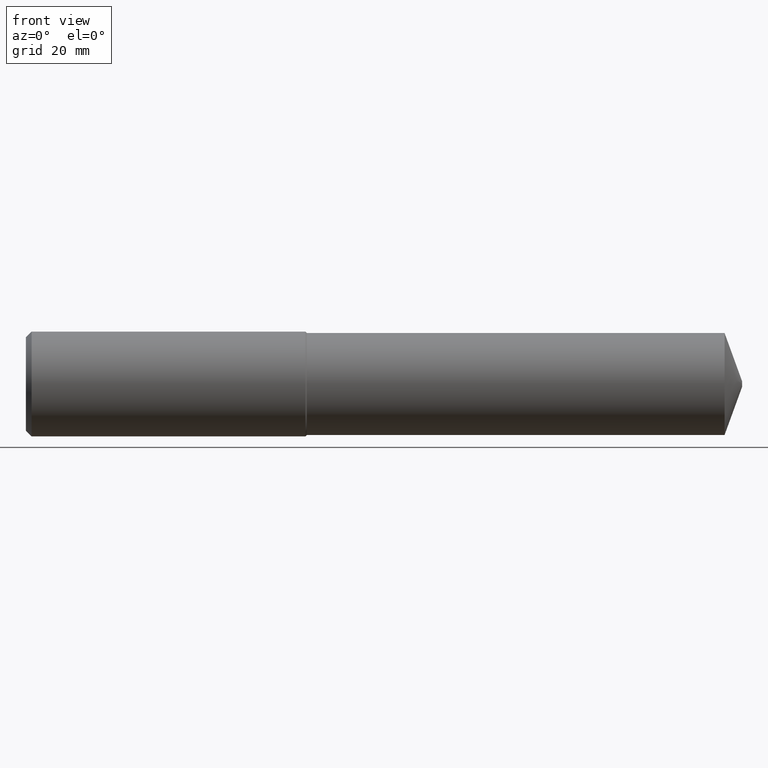
[diagram: clean part render]
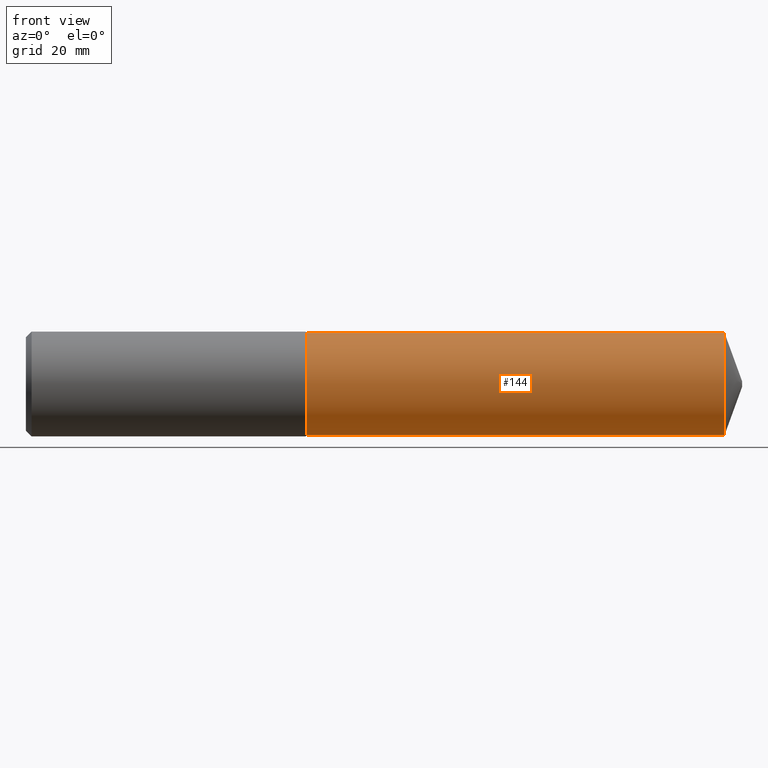
[diagram: same view with one face highlighted and labeled with its STEP entity id]
A machine part, front view. The second image highlights one B-rep face of the part: STEP entity #144.
In plain terms, the highlighted cylindrical surface (partial cylindrical patch) has radius 8.7503 mm, axis along (1, -0, -0).
Its self-contained STEP definition (entity closure, byte-faithful):
#12 = LINE ( 'NONE', #121, #78 ) ;
#14 = DIRECTION ( 'NONE',  ( 1.000000000000000000, -0.000000000000000000, -0.000000000000000000 ) ) ;
#17 = EDGE_LOOP ( 'NONE', ( #248, #75, #277, #185 ) ) ;
#25 = CARTESIAN_POINT ( 'NONE',  ( -0.03808593750000075634, 4.218908223062636632E-17, 0.3445000000000003615 ) ) ;
#27 = CARTESIAN_POINT ( 'NONE',  ( 4.723501418434322474, 4.218908223062640330E-17, -0.3445000000000006390 ) ) ;
#56 = DIRECTION ( 'NONE',  ( 0.000000000000000000, 0.000000000000000000, -1.000000000000000000 ) ) ;
#58 = DIRECTION ( 'NONE',  ( 0.000000000000000000, 0.000000000000000000, -1.000000000000000000 ) ) ;
#74 = EDGE_CURVE ( 'NONE', #367, #116, #12, .T. ) ;
#75 = ORIENTED_EDGE ( 'NONE', *, *, #289, .T. ) ;
#78 = VECTOR ( 'NONE', #14, 39.37007874015748143 ) ;
#81 = EDGE_CURVE ( 'NONE', #218, #266, #124, .T. ) ;
#90 = DIRECTION ( 'NONE',  ( 1.000000000000000000, -0.000000000000000000, -0.000000000000000000 ) ) ;
#112 = FACE_OUTER_BOUND ( 'NONE', #17, .T. ) ;
#116 = VERTEX_POINT ( 'NONE', #27 ) ;
#117 = CARTESIAN_POINT ( 'NONE',  ( 4.723501418434322474, 0.000000000000000000, 0.3445000000000006390 ) ) ;
#121 = CARTESIAN_POINT ( 'NONE',  ( -0.03808593750000075634, 0.000000000000000000, -0.3445000000000003615 ) ) ;
#124 = LINE ( 'NONE', #25, #345 ) ;
#129 = CYLINDRICAL_SURFACE ( 'NONE', #177, 0.3445000000000003615 ) ;
#137 = CARTESIAN_POINT ( 'NONE',  ( -0.03808593750000075634, 0.000000000000000000, 0.000000000000000000 ) ) ;
#143 = DIRECTION ( 'NONE',  ( 0.000000000000000000, 0.000000000000000000, -1.000000000000000000 ) ) ;
#144 = ADVANCED_FACE ( 'NONE', ( #112 ), #129, .T. ) ;
#174 = CARTESIAN_POINT ( 'NONE',  ( 1.899594488188976582, 0.000000000000000000, 0.000000000000000000 ) ) ;
#177 = AXIS2_PLACEMENT_3D ( 'NONE', #137, #312, #56 ) ;
#185 = ORIENTED_EDGE ( 'NONE', *, *, #376, .F. ) ;
#200 = DIRECTION ( 'NONE',  ( 1.000000000000000000, -0.000000000000000000, -0.000000000000000000 ) ) ;
#218 = VERTEX_POINT ( 'NONE', #377 ) ;
#224 = AXIS2_PLACEMENT_3D ( 'NONE', #174, #200, #58 ) ;
#248 = ORIENTED_EDGE ( 'NONE', *, *, #81, .F. ) ;
#251 = DIRECTION ( 'NONE',  ( 1.000000000000000000, -0.000000000000000000, -0.000000000000000000 ) ) ;
#266 = VERTEX_POINT ( 'NONE', #117 ) ;
#277 = ORIENTED_EDGE ( 'NONE', *, *, #74, .T. ) ;
#288 = CARTESIAN_POINT ( 'NONE',  ( 1.899594488188976582, 0.000000000000000000, -0.3445000000000001950 ) ) ;
#289 = EDGE_CURVE ( 'NONE', #218, #367, #349, .T. ) ;
#299 = CIRCLE ( 'NONE', #371, 0.3445000000000005835 ) ;
#312 = DIRECTION ( 'NONE',  ( 1.000000000000000000, -0.000000000000000000, -0.000000000000000000 ) ) ;
#326 = CARTESIAN_POINT ( 'NONE',  ( 4.723501418434322474, 0.000000000000000000, 0.000000000000000000 ) ) ;
#345 = VECTOR ( 'NONE', #251, 39.37007874015748143 ) ;
#349 = CIRCLE ( 'NONE', #224, 0.3445000000000001950 ) ;
#367 = VERTEX_POINT ( 'NONE', #288 ) ;
#371 = AXIS2_PLACEMENT_3D ( 'NONE', #326, #90, #143 ) ;
#376 = EDGE_CURVE ( 'NONE', #266, #116, #299, .T. ) ;
#377 = CARTESIAN_POINT ( 'NONE',  ( 1.899594488188976582, 4.218908223062635399E-17, 0.3445000000000001950 ) ) ;